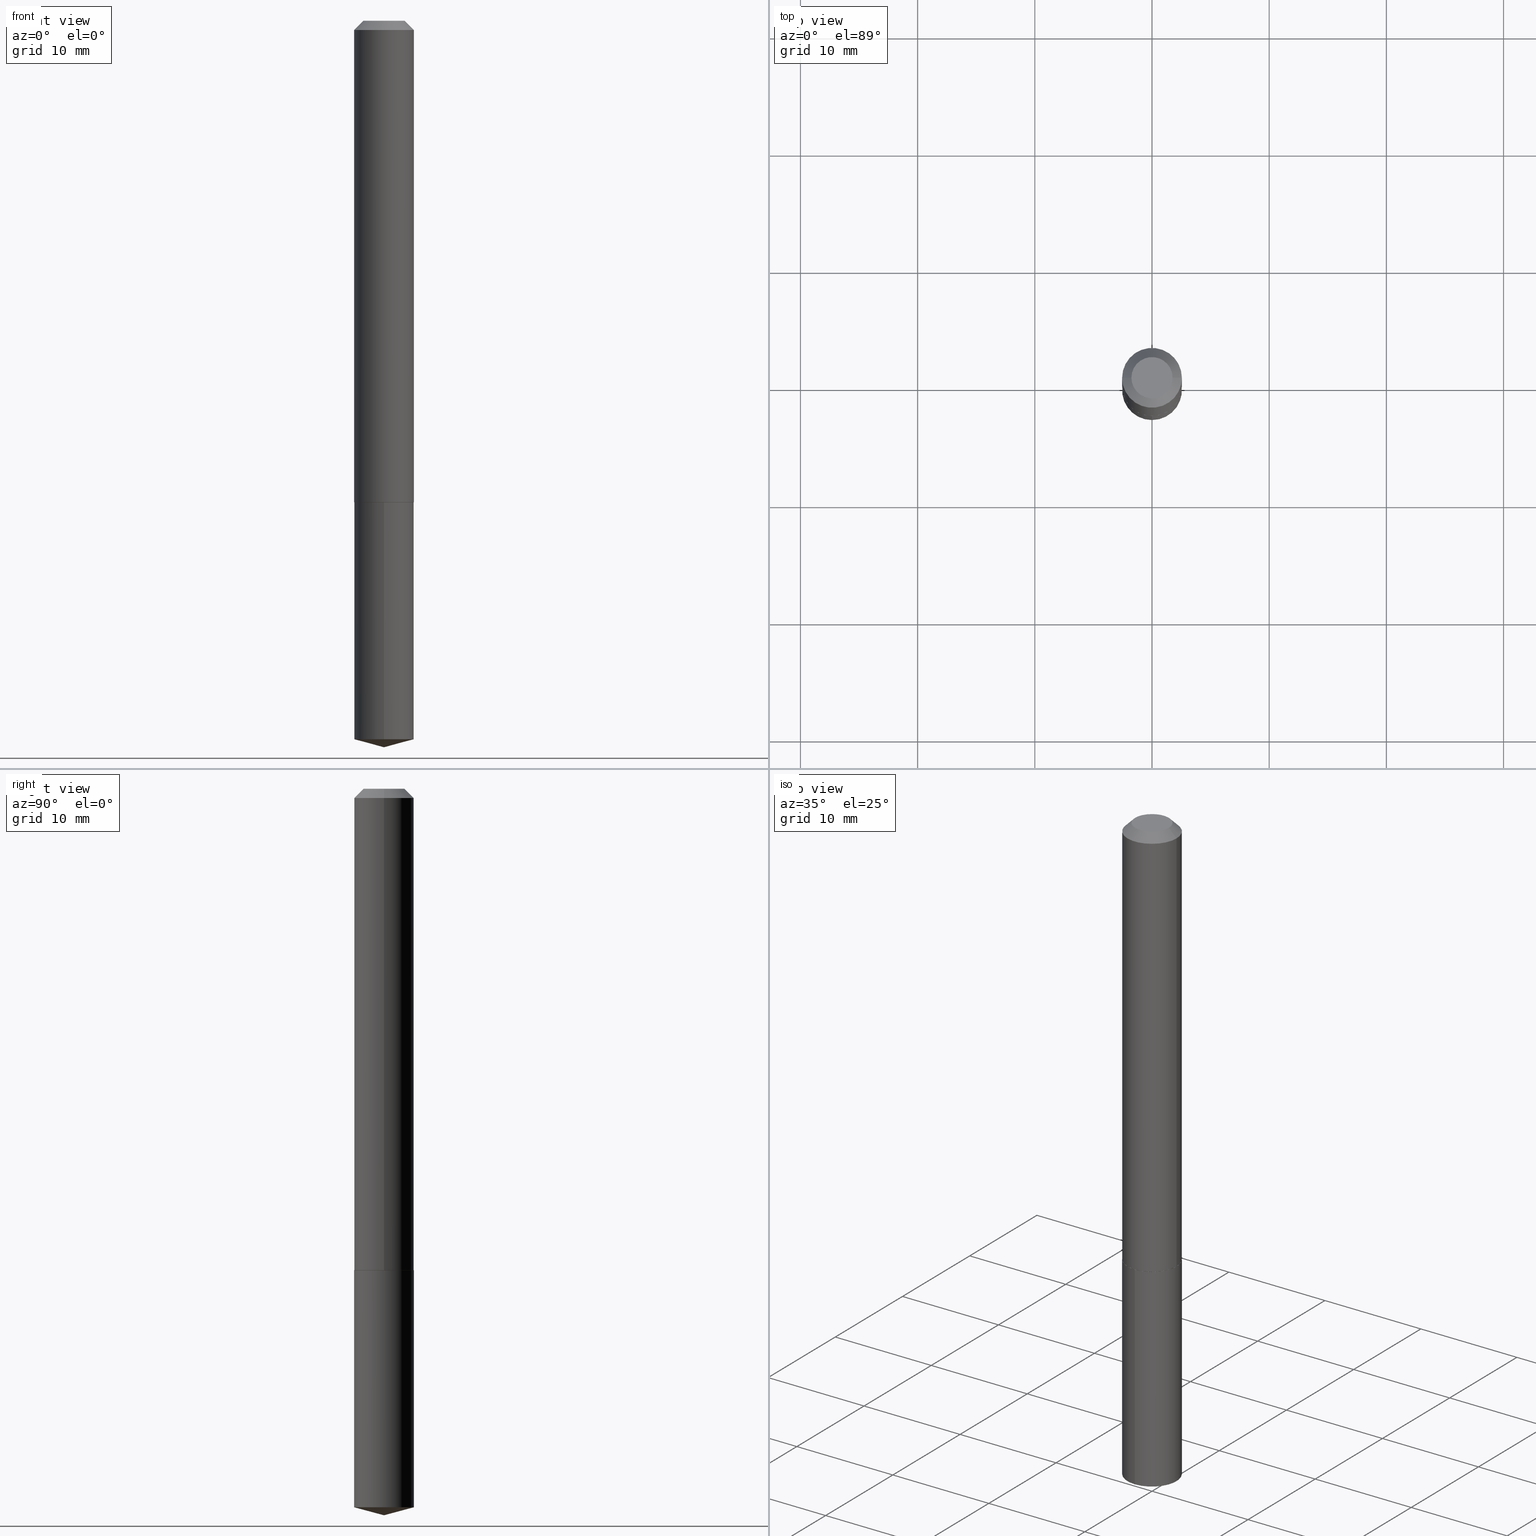
[diagram: canonical four-view strip — front | top / right | iso, engineering-drawing reading convention]
A machine part, canonical four-view strip (front | top / right | iso — engineering-drawing reading convention). The complete STEP part file that produces these views, byte-faithful:
ISO-10303-21;
HEADER;
FILE_DESCRIPTION (( 'STEP AP203' ),
    '1' );
FILE_NAME ('63057.STEP',
    '2024-04-23T08:57:42',
    ( '' ),
    ( '' ),
    'SwSTEP 2.0',
    'SolidWorks 2023',
    '' );
FILE_SCHEMA (( 'CONFIG_CONTROL_DESIGN' ));
ENDSEC;

DATA;
#1 = DIRECTION ( 'NONE',  ( -2.445468806185136597E-29, 3.491481338843145583E-15, 1.000000000000000000 ) ) ;
#2 = FACE_OUTER_BOUND ( 'NONE', #202, .T. ) ;
#3 = DIRECTION ( 'NONE',  ( 1.000000000000000000, -6.982962677686267499E-15, 4.876150890010814113E-29 ) ) ;
#4 = SHAPE_DEFINITION_REPRESENTATION ( #200, #20 ) ;
#5 = CARTESIAN_POINT ( 'NONE',  ( -1.182960040634188585E-47, 1.688953421129311321E-33, 4.837354856632064502E-19 ) ) ;
#6 = DIRECTION ( 'NONE',  ( 2.445371237226731919E-29, -3.491621063144860985E-15, -1.000000000000000000 ) ) ;
#7 = APPLICATION_CONTEXT ( 'configuration controlled 3d designs of mechanical parts and assemblies' ) ;
#8 = CARTESIAN_POINT ( 'NONE',  ( 7.133849067031996748E-16, 0.1003999999999943549, -1.618100000000000316 ) ) ;
#9 = CARTESIAN_POINT ( 'NONE',  ( 0.1004000000000000170, -7.979027908151110397E-16, -0.03125000000000020123 ) ) ;
#10 = DIRECTION ( 'NONE',  ( -2.445468806185136597E-29, 3.491481338843145583E-15, 1.000000000000000000 ) ) ;
#11 = CARTESIAN_POINT ( 'NONE',  ( 7.642090019328601786E-31, -1.091087918388490144E-16, -0.03125000000000020123 ) ) ;
#12 = AXIS2_PLACEMENT_3D ( 'NONE', #341, #243, #218 ) ;
#13 = VECTOR ( 'NONE', #252, 39.37007874015748143 ) ;
#14 = LINE ( 'NONE', #194, #286 ) ;
#15 = ADVANCED_FACE ( 'NONE', ( #230 ), #138, .T. ) ;
#16 = PERSON_AND_ORGANIZATION_ROLE ( 'classification_officer' ) ;
#17 = ORIENTED_EDGE ( 'NONE', *, *, #188, .T. ) ;
#18 = CALENDAR_DATE ( 2024, 23, 4 ) ;
#19 = ORIENTED_EDGE ( 'NONE', *, *, #245, .F. ) ;
#20 = ADVANCED_BREP_SHAPE_REPRESENTATION ( '63057', ( #167, #249, #28 ), #251 ) ;
#21 = DIRECTION ( 'NONE',  ( -2.445468806185136597E-29, 3.491481338843145583E-15, 1.000000000000000000 ) ) ;
#22 = VERTEX_POINT ( 'NONE', #203 ) ;
#23 = DATE_AND_TIME ( #76, #375 ) ;
#24 = ORIENTED_EDGE ( 'NONE', *, *, #115, .F. ) ;
#25 = DATE_TIME_ROLE ( 'creation_date' ) ;
#26 = ORIENTED_EDGE ( 'NONE', *, *, #174, .F. ) ;
#27 = AXIS2_PLACEMENT_3D ( 'NONE', #350, #282, #128 ) ;
#28 = AXIS2_PLACEMENT_3D ( 'NONE', #142, #329, #327 ) ;
#29 = CARTESIAN_POINT ( 'NONE',  ( 7.133849067031994776E-16, 0.1003999999999915516, -2.413997901079916186 ) ) ;
#30 = ADVANCED_FACE ( 'NONE', ( #274 ), #154, .T. ) ;
#31 = DIRECTION ( 'NONE',  ( -2.445468806185136597E-29, 3.491481338843145583E-15, 1.000000000000000000 ) ) ;
#32 = FACE_OUTER_BOUND ( 'NONE', #104, .T. ) ;
#33 = AXIS2_PLACEMENT_3D ( 'NONE', #147, #6, #62 ) ;
#34 = CARTESIAN_POINT ( 'NONE',  ( 3.955790340885077095E-29, -5.647820213712673171E-15, -1.617600000000000149 ) ) ;
#35 = CC_DESIGN_APPROVAL ( #84, ( #78 ) ) ;
#36 = CC_DESIGN_PERSON_AND_ORGANIZATION_ASSIGNMENT ( #110, #292, ( #291 ) ) ;
#37 = CARTESIAN_POINT ( 'NONE',  ( -0.1004000000000002113, -4.934435307009531477E-15, -1.617600000000000149 ) ) ;
#38 = DIRECTION ( 'NONE',  ( -1.000000000000000000, 6.982962677686266711E-15, 0.000000000000000000 ) ) ;
#39 = DIRECTION ( 'NONE',  ( -2.445468806185136597E-29, 3.491481338843145583E-15, 1.000000000000000000 ) ) ;
#40 = CONICAL_SURFACE ( 'NONE', #199, 146.9311341562572579, 1.308996938995750980 ) ;
#41 = DIRECTION ( 'NONE',  ( -2.445371237226732199E-29, 3.491621063144860985E-15, 1.000000000000000000 ) ) ;
#42 = LINE ( 'NONE', #349, #219 ) ;
#43 = EDGE_CURVE ( 'NONE', #320, #390, #307, .T. ) ;
#44 = FACE_OUTER_BOUND ( 'NONE', #145, .T. ) ;
#45 = CLOSED_SHELL ( 'NONE', ( #15, #242, #176, #312, #81, #378, #186, #180 ) ) ;
#46 = ADVANCED_FACE ( 'NONE', ( #308 ), #92, .F. ) ;
#47 =( NAMED_UNIT ( * ) SI_UNIT ( $, .STERADIAN. ) SOLID_ANGLE_UNIT ( ) );
#48 = VERTEX_POINT ( 'NONE', #338 ) ;
#49 = EDGE_LOOP ( 'NONE', ( #360, #137 ) ) ;
#50 =( LENGTH_UNIT ( ) NAMED_UNIT ( * ) SI_UNIT ( $, .METRE. ) );
#51 = ORIENTED_EDGE ( 'NONE', *, *, #321, .T. ) ;
#52 = APPLICATION_PROTOCOL_DEFINITION ( 'international standard', 'config_control_design', 1994, #290 ) ;
#53 = EDGE_LOOP ( 'NONE', ( #361, #334, #387, #205 ) ) ;
#54 = CARTESIAN_POINT ( 'NONE',  ( -1.182960040634188585E-47, 1.688953421129311321E-33, 4.837354856632064502E-19 ) ) ;
#55 = PERSON ( 'UNSPECIFIED', 'UNSPECIFIED', 'UNSPECIFIED', ('UNSPECIFIED'), ('UNSPECIFIED'), ('UNSPECIFIED') ) ;
#56 = ORGANIZATION ( 'UNSPECIFIED', 'UNSPECIFIED', '' ) ;
#57 = EDGE_CURVE ( 'NONE', #320, #302, #317, .T. ) ;
#58 = DIRECTION ( 'NONE',  ( -2.445371237226732199E-29, 3.491621063144860985E-15, 1.000000000000000000 ) ) ;
#59 = DIRECTION ( 'NONE',  ( -2.445468806185136877E-29, 3.491481338843145188E-15, 1.000000000000000000 ) ) ;
#60 = CARTESIAN_POINT ( 'NONE',  ( -9.030539362925444552E-28, 1.289429244216678709E-13, 36.92917874015748225 ) ) ;
#61 = AXIS2_PLACEMENT_3D ( 'NONE', #60, #85, #211 ) ;
#62 = DIRECTION ( 'NONE',  ( 6.982962677686265922E-15, 1.000000000000000000, -3.491621063144860985E-15 ) ) ;
#63 = PLANE ( 'NONE',  #131 ) ;
#64 = APPROVAL ( #306, 'UNSPECIFIED' ) ;
#65 = DIRECTION ( 'NONE',  ( 2.438088387897960049E-29, -3.491481338843145188E-15, -1.000000000000000000 ) ) ;
#66 = CARTESIAN_POINT ( 'NONE',  ( 0.06915000000000000313, -6.361531136805061115E-16, 4.837354856671185917E-19 ) ) ;
#67 = CIRCLE ( 'NONE', #236, 0.06915000000000000313 ) ;
#68 = AXIS2_PLACEMENT_3D ( 'NONE', #151, #120, #273 ) ;
#69 = ORIENTED_EDGE ( 'NONE', *, *, #343, .T. ) ;
#70 = LINE ( 'NONE', #94, #263 ) ;
#71 = LINE ( 'NONE', #9, #342 ) ;
#72 = LOCAL_TIME ( 4, 57, 42.00000000000000000, #339 ) ;
#73 = VERTEX_POINT ( 'NONE', #29 ) ;
#74 =( CONVERSION_BASED_UNIT ( 'INCH', #385 ) LENGTH_UNIT ( ) NAMED_UNIT ( #196 ) );
#75 = ORIENTED_EDGE ( 'NONE', *, *, #112, .F. ) ;
#76 = CALENDAR_DATE ( 2024, 23, 4 ) ;
#77 = EDGE_LOOP ( 'NONE', ( #358, #330, #26 ) ) ;
#78 = PRODUCT_DEFINITION_FORMATION_WITH_SPECIFIED_SOURCE ( 'ANY', '', #291, .NOT_KNOWN. ) ;
#79 = COORDINATED_UNIVERSAL_TIME_OFFSET ( 5, 0, .BEHIND. ) ;
#80 = EDGE_LOOP ( 'NONE', ( #127, #193, #208, #297 ) ) ;
#81 = ADVANCED_FACE ( 'NONE', ( #89 ), #157, .T. ) ;
#82 = CALENDAR_DATE ( 2024, 23, 4 ) ;
#83 = ORIENTED_EDGE ( 'NONE', *, *, #323, .F. ) ;
#84 = APPROVAL ( #357, 'UNSPECIFIED' ) ;
#85 = DIRECTION ( 'NONE',  ( -2.445371237226732199E-29, 3.491621063144860985E-15, 1.000000000000000000 ) ) ;
#86 = CIRCLE ( 'NONE', #91, 0.1004000000000000031 ) ;
#87 = PLANE ( 'NONE',  #172 ) ;
#88 = DATE_TIME_ROLE ( 'classification_date' ) ;
#89 = FACE_OUTER_BOUND ( 'NONE', #135, .T. ) ;
#90 = DIRECTION ( 'NONE',  ( -2.445468806185136597E-29, 3.491481338843145583E-15, 1.000000000000000000 ) ) ;
#91 = AXIS2_PLACEMENT_3D ( 'NONE', #305, #311, #364 ) ;
#92 = PLANE ( 'NONE',  #33 ) ;
#93 = CARTESIAN_POINT ( 'NONE',  ( 5.903278910358122984E-29, -8.428539829905512922E-15, -2.413997901079915742 ) ) ;
#94 = CARTESIAN_POINT ( 'NONE',  ( 7.133849067031800519E-16, 0.1003999999999943549, -1.618100000000000316 ) ) ;
#95 = EDGE_LOOP ( 'NONE', ( #51, #178, #260, #283 ) ) ;
#96 = CARTESIAN_POINT ( 'NONE',  ( 0.1004000000000002113, -6.348909666552376614E-15, -1.617600000000000149 ) ) ;
#97 = CIRCLE ( 'NONE', #27, 0.09990000000000007208 ) ;
#98 = EDGE_CURVE ( 'NONE', #347, #223, #182, .T. ) ;
#99 = CC_DESIGN_APPROVAL ( #64, ( #213 ) ) ;
#100 = DIRECTION ( 'NONE',  ( 0.7071067811865453523, -7.319954787623248157E-15, -0.7071067811865496822 ) ) ;
#101 = EDGE_CURVE ( 'NONE', #384, #380, #304, .T. ) ;
#102 = DIRECTION ( 'NONE',  ( -2.445468806185136597E-29, 3.491481338843145583E-15, 1.000000000000000000 ) ) ;
#103 = EDGE_CURVE ( 'NONE', #22, #328, #369, .T. ) ;
#104 = EDGE_LOOP ( 'NONE', ( #270, #69, #175 ) ) ;
#105 = CIRCLE ( 'NONE', #325, 0.1004000000000000170 ) ;
#106 = AXIS2_PLACEMENT_3D ( 'NONE', #322, #102, #254 ) ;
#107 = APPROVAL_DATE_TIME ( #23, #303 ) ;
#108 = ORIENTED_EDGE ( 'NONE', *, *, #197, .F. ) ;
#109 = ORIENTED_EDGE ( 'NONE', *, *, #245, .T. ) ;
#110 = PERSON_AND_ORGANIZATION ( #55, #56 ) ;
#111 = ORIENTED_EDGE ( 'NONE', *, *, #367, .F. ) ;
#112 = EDGE_CURVE ( 'NONE', #223, #347, #86, .T. ) ;
#113 = CC_DESIGN_SECURITY_CLASSIFICATION ( #213, ( #78 ) ) ;
#114 = VERTEX_POINT ( 'NONE', #37 ) ;
#115 = EDGE_CURVE ( 'NONE', #114, #209, #255, .T. ) ;
#116 = DIRECTION ( 'NONE',  ( 1.000000000000000000, -6.982962677686267499E-15, 4.876150890010814113E-29 ) ) ;
#117 = DIRECTION ( 'NONE',  ( -2.445468806185136597E-29, 3.491481338843145583E-15, 1.000000000000000000 ) ) ;
#118 = CONICAL_SURFACE ( 'NONE', #348, 0.1004000000000002113, 0.7853981633974141952 ) ;
#119 = LOCAL_TIME ( 4, 57, 42.00000000000000000, #267 ) ;
#120 = DIRECTION ( 'NONE',  ( -2.445371237226732199E-29, 3.491621063144860985E-15, 1.000000000000000000 ) ) ;
#121 = DIRECTION ( 'NONE',  ( -2.445468806185136597E-29, 3.491481338843145583E-15, 1.000000000000000000 ) ) ;
#122 = CARTESIAN_POINT ( 'NONE',  ( 3.955790340885077095E-29, -5.647820213712673171E-15, -1.617600000000000149 ) ) ;
#123 = EDGE_CURVE ( 'NONE', #209, #48, #246, .T. ) ;
#124 = CARTESIAN_POINT ( 'NONE',  ( -7.010894528396616337E-16, -0.1004000000000056514, -1.618099999999999872 ) ) ;
#125 = EDGE_CURVE ( 'NONE', #302, #320, #67, .T. ) ;
#126 = LINE ( 'NONE', #253, #336 ) ;
#127 = ORIENTED_EDGE ( 'NONE', *, *, #294, .T. ) ;
#128 = DIRECTION ( 'NONE',  ( 1.000000000000000000, -6.982962677686262766E-15, 0.000000000000000000 ) ) ;
#129 = DIRECTION ( 'NONE',  ( -6.982962677686266711E-15, -1.000000000000000000, 2.720964137115799877E-15 ) ) ;
#130 = CONICAL_SURFACE ( 'NONE', #61, 146.9311341562572579, 1.308996938995750980 ) ;
#131 = AXIS2_PLACEMENT_3D ( 'NONE', #371, #313, #192 ) ;
#132 = CYLINDRICAL_SURFACE ( 'NONE', #163, 0.1004000000000000031 ) ;
#133 = ORIENTED_EDGE ( 'NONE', *, *, #57, .F. ) ;
#134 = CALENDAR_DATE ( 2024, 23, 4 ) ;
#135 = EDGE_LOOP ( 'NONE', ( #19, #268, #316, #24 ) ) ;
#136 = SECURITY_CLASSIFICATION_LEVEL ( 'unclassified' ) ;
#137 = ORIENTED_EDGE ( 'NONE', *, *, #103, .F. ) ;
#138 = CONICAL_SURFACE ( 'NONE', #353, 0.1004000000000000170, 0.7853981633974452814 ) ;
#139 = PERSON_AND_ORGANIZATION_ROLE ( 'design_supplier' ) ;
#140 = EDGE_LOOP ( 'NONE', ( #332, #299 ) ) ;
#141 = ADVANCED_FACE ( 'NONE', ( #239 ), #130, .T. ) ;
#142 = CARTESIAN_POINT ( 'NONE',  ( 0.000000000000000000, 0.000000000000000000, 0.000000000000000000 ) ) ;
#143 = ORIENTED_EDGE ( 'NONE', *, *, #174, .T. ) ;
#144 = APPROVAL_ROLE ( '' ) ;
#145 = EDGE_LOOP ( 'NONE', ( #111, #143, #235, #75 ) ) ;
#146 = AXIS2_PLACEMENT_3D ( 'NONE', #314, #39, #158 ) ;
#147 = CARTESIAN_POINT ( 'NONE',  ( 3.957013075288169897E-29, -5.649565954382093886E-15, -1.618100000000000094 ) ) ;
#148 = DESIGN_CONTEXT ( 'detailed design', #290, 'design' ) ;
#149 = DIRECTION ( 'NONE',  ( 1.000000000000000000, -6.982962677686266711E-15, 0.000000000000000000 ) ) ;
#150 = PRODUCT_RELATED_PRODUCT_CATEGORY ( 'detail', '', ( #291 ) ) ;
#151 = CARTESIAN_POINT ( 'NONE',  ( 5.903278910358122984E-29, -8.428539829905512922E-15, -2.413997901079915742 ) ) ;
#152 = CARTESIAN_POINT ( 'NONE',  ( 3.957013075288169897E-29, -5.649565954382093886E-15, -1.618100000000000094 ) ) ;
#153 = ADVANCED_FACE ( 'NONE', ( #32 ), #40, .T. ) ;
#154 = CYLINDRICAL_SURFACE ( 'NONE', #12, 0.1004000000000000031 ) ;
#155 = CARTESIAN_POINT ( 'NONE',  ( -0.06915000000000000313, 5.374262650814288063E-16, 4.837354856596389538E-19 ) ) ;
#156 = CC_DESIGN_DATE_AND_TIME_ASSIGNMENT ( #232, #25, ( #370 ) ) ;
#157 = CONICAL_SURFACE ( 'NONE', #191, 0.1004000000000002113, 0.7853981633974141952 ) ;
#158 = DIRECTION ( 'NONE',  ( 1.000000000000000000, -6.982962677686266711E-15, 0.000000000000000000 ) ) ;
#159 = APPROVAL_PERSON_ORGANIZATION ( #352, #84, #144 ) ;
#160 = LINE ( 'NONE', #124, #13 ) ;
#161 = CARTESIAN_POINT ( 'NONE',  ( 0.1004000000000002113, -6.348909666552376614E-15, -1.617600000000000149 ) ) ;
#162 = CARTESIAN_POINT ( 'NONE',  ( 3.957013075288169897E-29, -5.649565954382093886E-15, -1.618100000000000094 ) ) ;
#163 = AXIS2_PLACEMENT_3D ( 'NONE', #162, #41, #129 ) ;
#164 = PERSON_AND_ORGANIZATION ( #55, #56 ) ;
#165 = EDGE_CURVE ( 'NONE', #48, #390, #105, .T. ) ;
#166 = ORIENTED_EDGE ( 'NONE', *, *, #115, .T. ) ;
#167 = MANIFOLD_SOLID_BREP ( 'Body-Move/Copy2[1]', #359 ) ;
#168 = DIRECTION ( 'NONE',  ( 2.445468806185136597E-29, -3.491481338843145583E-15, -1.000000000000000000 ) ) ;
#169 = CC_DESIGN_DATE_AND_TIME_ASSIGNMENT ( #365, #88, ( #213 ) ) ;
#170 = APPROVAL_DATE_TIME ( #388, #84 ) ;
#171 = ORIENTED_EDGE ( 'NONE', *, *, #294, .F. ) ;
#172 = AXIS2_PLACEMENT_3D ( 'NONE', #324, #65, #226 ) ;
#173 = APPROVAL_PERSON_ORGANIZATION ( #265, #303, #234 ) ;
#174 = EDGE_CURVE ( 'NONE', #73, #380, #262, .T. ) ;
#175 = ORIENTED_EDGE ( 'NONE', *, *, #321, .F. ) ;
#176 = ADVANCED_FACE ( 'NONE', ( #2 ), #118, .T. ) ;
#177 = PERSON_AND_ORGANIZATION_ROLE ( 'creator' ) ;
#178 = ORIENTED_EDGE ( 'NONE', *, *, #367, .T. ) ;
#179 = PERSON_AND_ORGANIZATION ( #55, #56 ) ;
#180 = ADVANCED_FACE ( 'NONE', ( #363 ), #87, .F. ) ;
#181 = DIRECTION ( 'NONE',  ( -2.445468806185136597E-29, 3.491481338843145583E-15, 1.000000000000000000 ) ) ;
#182 = CIRCLE ( 'NONE', #271, 0.1004000000000000031 ) ;
#183 = DIRECTION ( 'NONE',  ( -2.445371237226732199E-29, 3.491621063144860985E-15, 1.000000000000000000 ) ) ;
#184 = CARTESIAN_POINT ( 'NONE',  ( 7.642090019328601786E-31, -1.091087918388490144E-16, -0.03125000000000020123 ) ) ;
#185 = CARTESIAN_POINT ( 'NONE',  ( 3.955790340885077095E-29, -5.647820213712673171E-15, -1.617600000000000149 ) ) ;
#186 = ADVANCED_FACE ( 'NONE', ( #190 ), #309, .T. ) ;
#187 = CARTESIAN_POINT ( 'NONE',  ( 5.968906652946730825E-29, -8.522697853030292235E-15, -2.440900000000000070 ) ) ;
#188 = EDGE_CURVE ( 'NONE', #328, #22, #97, .T. ) ;
#189 = DIRECTION ( 'NONE',  ( 1.000000000000000000, -6.982962677686267499E-15, 0.000000000000000000 ) ) ;
#190 = FACE_OUTER_BOUND ( 'NONE', #386, .T. ) ;
#191 = AXIS2_PLACEMENT_3D ( 'NONE', #34, #362, #244 ) ;
#192 = DIRECTION ( 'NONE',  ( 1.000000000000000000, -6.982962677686265922E-15, 4.876176775795935793E-29 ) ) ;
#193 = ORIENTED_EDGE ( 'NONE', *, *, #197, .T. ) ;
#194 = CARTESIAN_POINT ( 'NONE',  ( -0.1004000000000001142, 7.133849067031413977E-16, -4.938610830615930599E-30 ) ) ;
#195 = DIRECTION ( 'NONE',  ( -0.7071067811865232589, 7.493145998870265808E-15, 0.7071067811865715536 ) ) ;
#196 = DIMENSIONAL_EXPONENTS ( 1.000000000000000000, 0.000000000000000000, 0.000000000000000000, 0.000000000000000000, 0.000000000000000000, 0.000000000000000000, 0.000000000000000000 ) ;
#197 = EDGE_CURVE ( 'NONE', #114, #390, #14, .T. ) ;
#198 = PERSON_AND_ORGANIZATION ( #55, #56 ) ;
#199 = AXIS2_PLACEMENT_3D ( 'NONE', #335, #58, #214 ) ;
#200 = PRODUCT_DEFINITION_SHAPE ( 'NONE', 'NONE',  #370 ) ;
#201 = CARTESIAN_POINT ( 'NONE',  ( -0.1004000000000000170, -2.165079596072618653E-15, -0.03125000000000020123 ) ) ;
#202 = EDGE_LOOP ( 'NONE', ( #17, #109, #171, #264 ) ) ;
#203 = CARTESIAN_POINT ( 'NONE',  ( -0.09990000000000007208, -4.937084534183643467E-15, -1.618100000000000316 ) ) ;
#204 = CALENDAR_DATE ( 2024, 23, 4 ) ;
#205 = ORIENTED_EDGE ( 'NONE', *, *, #43, .F. ) ;
#206 = CIRCLE ( 'NONE', #281, 0.1004000000000002113 ) ;
#207 = CARTESIAN_POINT ( 'NONE',  ( 5.968906652946730825E-29, -8.522697853030292235E-15, -2.440900000000000070 ) ) ;
#208 = ORIENTED_EDGE ( 'NONE', *, *, #165, .F. ) ;
#209 = VERTEX_POINT ( 'NONE', #96 ) ;
#210 = ADVANCED_FACE ( 'NONE', ( #44 ), #132, .T. ) ;
#211 = DIRECTION ( 'NONE',  ( -6.982962677686267499E-15, -1.000000000000000000, 3.510303681827586791E-15 ) ) ;
#212 = AXIS2_PLACEMENT_3D ( 'NONE', #277, #121, #340 ) ;
#213 = SECURITY_CLASSIFICATION ( '', '', #136 ) ;
#214 = DIRECTION ( 'NONE',  ( -6.982962677686267499E-15, -1.000000000000000000, 3.510303681827586791E-15 ) ) ;
#215 = APPROVAL_ROLE ( '' ) ;
#216 = DIRECTION ( 'NONE',  ( -6.982962677686266711E-15, -1.000000000000000000, 2.720964137115799877E-15 ) ) ;
#217 = EDGE_CURVE ( 'NONE', #302, #48, #71, .T. ) ;
#218 = DIRECTION ( 'NONE',  ( -6.982962677686266711E-15, -1.000000000000000000, 2.720964137115799877E-15 ) ) ;
#219 = VECTOR ( 'NONE', #195, 39.37007874015748854 ) ;
#220 = CARTESIAN_POINT ( 'NONE',  ( -0.1004000000000000170, 5.919806610008522719E-16, -0.03125000000000020123 ) ) ;
#221 = DIRECTION ( 'NONE',  ( -2.445371237226732199E-29, 3.491621063144860985E-15, 1.000000000000000000 ) ) ;
#222 = DIRECTION ( 'NONE',  ( -2.445371237226731919E-29, 3.491621063144860985E-15, 1.000000000000000000 ) ) ;
#223 = VERTEX_POINT ( 'NONE', #8 ) ;
#224 = AXIS2_PLACEMENT_3D ( 'NONE', #284, #21, #383 ) ;
#225 = CARTESIAN_POINT ( 'NONE',  ( 0.09990000000000007208, -6.347163925882952744E-15, -1.618100000000000316 ) ) ;
#226 = DIRECTION ( 'NONE',  ( -1.000000000000000000, 6.982962677686265922E-15, -4.876176775795935793E-29 ) ) ;
#227 = PERSON_AND_ORGANIZATION_ROLE ( 'creator' ) ;
#228 = CC_DESIGN_PERSON_AND_ORGANIZATION_ASSIGNMENT ( #301, #177, ( #370 ) ) ;
#229 = VECTOR ( 'NONE', #278, 39.37007874015748143 ) ;
#230 = FACE_OUTER_BOUND ( 'NONE', #53, .T. ) ;
#231 = ORIENTED_EDGE ( 'NONE', *, *, #123, .T. ) ;
#232 = DATE_AND_TIME ( #18, #119 ) ;
#233 = ORIENTED_EDGE ( 'NONE', *, *, #323, .T. ) ;
#234 = APPROVAL_ROLE ( '' ) ;
#235 = ORIENTED_EDGE ( 'NONE', *, *, #300, .T. ) ;
#236 = AXIS2_PLACEMENT_3D ( 'NONE', #54, #181, #116 ) ;
#237 = APPROVAL_PERSON_ORGANIZATION ( #179, #64, #215 ) ;
#238 = EDGE_LOOP ( 'NONE', ( #289, #333 ) ) ;
#239 = FACE_OUTER_BOUND ( 'NONE', #77, .T. ) ;
#240 = CC_DESIGN_PERSON_AND_ORGANIZATION_ASSIGNMENT ( #164, #16, ( #213 ) ) ;
#241 = DIRECTION ( 'NONE',  ( 1.000000000000000000, -6.982962677686267499E-15, 0.000000000000000000 ) ) ;
#242 = ADVANCED_FACE ( 'NONE', ( #257 ), #376, .T. ) ;
#243 = DIRECTION ( 'NONE',  ( -2.445371237226732199E-29, 3.491621063144860985E-15, 1.000000000000000000 ) ) ;
#244 = DIRECTION ( 'NONE',  ( 1.000000000000000000, -6.982962677686267499E-15, 0.000000000000000000 ) ) ;
#245 = EDGE_CURVE ( 'NONE', #22, #114, #42, .T. ) ;
#246 = LINE ( 'NONE', #368, #295 ) ;
#247 = UNCERTAINTY_MEASURE_WITH_UNIT (LENGTH_MEASURE( 1.000000000000000082E-05 ), #74, 'distance_accuracy_value', 'NONE');
#248 = EDGE_CURVE ( 'NONE', #328, #209, #285, .T. ) ;
#249 = MANIFOLD_SOLID_BREP ( 'Body-Move/Copy2[2]', #45 ) ;
#250 = AXIS2_PLACEMENT_3D ( 'NONE', #122, #1, #272 ) ;
#251 =( GEOMETRIC_REPRESENTATION_CONTEXT ( 3 ) GLOBAL_UNCERTAINTY_ASSIGNED_CONTEXT ( ( #247 ) ) GLOBAL_UNIT_ASSIGNED_CONTEXT ( ( #74, #259, #47 ) ) REPRESENTATION_CONTEXT ( 'NONE', 'WORKASPACE' ) );
#252 = DIRECTION ( 'NONE',  ( -2.445371237226731919E-29, 3.491621063144860985E-15, 1.000000000000000000 ) ) ;
#253 = CARTESIAN_POINT ( 'NONE',  ( 5.969225174388058850E-29, -8.522245677245080758E-15, -2.440900000000000070 ) ) ;
#254 = DIRECTION ( 'NONE',  ( 1.000000000000000000, -6.982962677686266711E-15, 4.876176775795935232E-29 ) ) ;
#255 = CIRCLE ( 'NONE', #250, 0.1004000000000002113 ) ;
#256 = CIRCLE ( 'NONE', #146, 0.1004000000000000170 ) ;
#257 = FACE_OUTER_BOUND ( 'NONE', #80, .T. ) ;
#258 = CARTESIAN_POINT ( 'NONE',  ( 3.955790340885077095E-29, -5.647820213712673171E-15, -1.617600000000000149 ) ) ;
#259 =( NAMED_UNIT ( * ) PLANE_ANGLE_UNIT ( ) SI_UNIT ( $, .RADIAN. ) );
#260 = ORIENTED_EDGE ( 'NONE', *, *, #98, .F. ) ;
#261 = COORDINATED_UNIVERSAL_TIME_OFFSET ( 5, 0, .BEHIND. ) ;
#262 = CIRCLE ( 'NONE', #68, 0.1004000000000000031 ) ;
#263 = VECTOR ( 'NONE', #222, 39.37007874015748143 ) ;
#264 = ORIENTED_EDGE ( 'NONE', *, *, #248, .F. ) ;
#265 = PERSON_AND_ORGANIZATION ( #55, #56 ) ;
#266 = EDGE_LOOP ( 'NONE', ( #108, #166, #231, #83 ) ) ;
#267 = COORDINATED_UNIVERSAL_TIME_OFFSET ( 5, 0, .BEHIND. ) ;
#268 = ORIENTED_EDGE ( 'NONE', *, *, #103, .T. ) ;
#269 = APPLICATION_PROTOCOL_DEFINITION ( 'international standard', 'config_control_design', 1994, #7 ) ;
#270 = ORIENTED_EDGE ( 'NONE', *, *, #101, .F. ) ;
#271 = AXIS2_PLACEMENT_3D ( 'NONE', #152, #183, #216 ) ;
#272 = DIRECTION ( 'NONE',  ( 1.000000000000000000, -6.982962677686267499E-15, 0.000000000000000000 ) ) ;
#273 = DIRECTION ( 'NONE',  ( -6.982962677686266711E-15, -1.000000000000000000, 2.720964137115799877E-15 ) ) ;
#274 = FACE_OUTER_BOUND ( 'NONE', #95, .T. ) ;
#275 = AXIS2_PLACEMENT_3D ( 'NONE', #11, #279, #38 ) ;
#276 = CC_DESIGN_APPROVAL ( #303, ( #370 ) ) ;
#277 = CARTESIAN_POINT ( 'NONE',  ( 3.957013075288171018E-29, -5.649565954382094675E-15, -1.618100000000000316 ) ) ;
#278 = DIRECTION ( 'NONE',  ( -0.7071067811865453523, 2.468850131082234184E-15, -0.7071067811865496822 ) ) ;
#279 = DIRECTION ( 'NONE',  ( 2.445468806185136597E-29, -3.491481338843145583E-15, -1.000000000000000000 ) ) ;
#280 = VECTOR ( 'NONE', #366, 39.37007874015748143 ) ;
#281 = AXIS2_PLACEMENT_3D ( 'NONE', #258, #10, #189 ) ;
#282 = DIRECTION ( 'NONE',  ( -2.445468806185136597E-29, 3.491481338843145583E-15, 1.000000000000000000 ) ) ;
#283 = ORIENTED_EDGE ( 'NONE', *, *, #300, .F. ) ;
#284 = CARTESIAN_POINT ( 'NONE',  ( 0.000000000000000000, 0.000000000000000000, 0.000000000000000000 ) ) ;
#285 = LINE ( 'NONE', #161, #326 ) ;
#286 = VECTOR ( 'NONE', #344, 39.37007874015748143 ) ;
#287 = DIRECTION ( 'NONE',  ( 0.7071067811865232589, -2.468850131082003836E-15, 0.7071067811865715536 ) ) ;
#288 = MECHANICAL_CONTEXT ( 'NONE', #7, 'mechanical' ) ;
#289 = ORIENTED_EDGE ( 'NONE', *, *, #57, .T. ) ;
#290 = APPLICATION_CONTEXT ( 'configuration controlled 3d designs of mechanical parts and assemblies' ) ;
#291 = PRODUCT ( '63057', '63057', '', ( #288 ) ) ;
#292 = PERSON_AND_ORGANIZATION_ROLE ( 'design_owner' ) ;
#293 = ORIENTED_EDGE ( 'NONE', *, *, #217, .F. ) ;
#294 = EDGE_CURVE ( 'NONE', #209, #114, #206, .T. ) ;
#295 = VECTOR ( 'NONE', #59, 39.37007874015748143 ) ;
#296 = AXIS2_PLACEMENT_3D ( 'NONE', #93, #221, #345 ) ;
#297 = ORIENTED_EDGE ( 'NONE', *, *, #123, .F. ) ;
#298 = APPROVAL_STATUS ( 'not_yet_approved' ) ;
#299 = ORIENTED_EDGE ( 'NONE', *, *, #112, .T. ) ;
#300 = EDGE_CURVE ( 'NONE', #380, #347, #160, .T. ) ;
#301 = PERSON_AND_ORGANIZATION ( #55, #56 ) ;
#302 = VERTEX_POINT ( 'NONE', #66 ) ;
#303 = APPROVAL ( #298, 'UNSPECIFIED' ) ;
#304 = LINE ( 'NONE', #187, #280 ) ;
#305 = CARTESIAN_POINT ( 'NONE',  ( 3.957013075288169897E-29, -5.649565954382093886E-15, -1.618100000000000094 ) ) ;
#306 = APPROVAL_STATUS ( 'not_yet_approved' ) ;
#307 = LINE ( 'NONE', #220, #229 ) ;
#308 = FACE_OUTER_BOUND ( 'NONE', #140, .T. ) ;
#309 = CONICAL_SURFACE ( 'NONE', #275, 0.1004000000000000170, 0.7853981633974452814 ) ;
#310 = DATE_AND_TIME ( #82, #72 ) ;
#311 = DIRECTION ( 'NONE',  ( -2.445371237226732199E-29, 3.491621063144860985E-15, 1.000000000000000000 ) ) ;
#312 = ADVANCED_FACE ( 'NONE', ( #377 ), #63, .F. ) ;
#313 = DIRECTION ( 'NONE',  ( -2.438088387897960049E-29, 3.491481338843145188E-15, 1.000000000000000000 ) ) ;
#314 = CARTESIAN_POINT ( 'NONE',  ( 7.642090019328601786E-31, -1.091087918388490144E-16, -0.03125000000000020123 ) ) ;
#315 = CC_DESIGN_PERSON_AND_ORGANIZATION_ASSIGNMENT ( #198, #139, ( #78 ) ) ;
#316 = ORIENTED_EDGE ( 'NONE', *, *, #248, .T. ) ;
#317 = CIRCLE ( 'NONE', #374, 0.06915000000000000313 ) ;
#318 = LOCAL_TIME ( 4, 57, 42.00000000000000000, #355 ) ;
#319 = CYLINDRICAL_SURFACE ( 'NONE', #224, 0.1004000000000001142 ) ;
#320 = VERTEX_POINT ( 'NONE', #155 ) ;
#321 = EDGE_CURVE ( 'NONE', #380, #73, #382, .T. ) ;
#322 = CARTESIAN_POINT ( 'NONE',  ( 0.000000000000000000, 0.000000000000000000, 0.000000000000000000 ) ) ;
#323 = EDGE_CURVE ( 'NONE', #390, #48, #256, .T. ) ;
#324 = CARTESIAN_POINT ( 'NONE',  ( -5.914800203170942927E-48, 8.444767105646556605E-34, 2.418677428316032251E-19 ) ) ;
#325 = AXIS2_PLACEMENT_3D ( 'NONE', #184, #31, #149 ) ;
#326 = VECTOR ( 'NONE', #287, 39.37007874015748854 ) ;
#327 = DIRECTION ( 'NONE',  ( 1.000000000000000000, 0.000000000000000000, 0.000000000000000000 ) ) ;
#328 = VERTEX_POINT ( 'NONE', #225 ) ;
#329 = DIRECTION ( 'NONE',  ( 0.000000000000000000, 0.000000000000000000, 1.000000000000000000 ) ) ;
#330 = ORIENTED_EDGE ( 'NONE', *, *, #101, .T. ) ;
#331 = PERSON_AND_ORGANIZATION ( #55, #56 ) ;
#332 = ORIENTED_EDGE ( 'NONE', *, *, #98, .T. ) ;
#333 = ORIENTED_EDGE ( 'NONE', *, *, #125, .T. ) ;
#334 = ORIENTED_EDGE ( 'NONE', *, *, #217, .T. ) ;
#335 = CARTESIAN_POINT ( 'NONE',  ( -9.030539362925444552E-28, 1.289429244216678709E-13, 36.92917874015748225 ) ) ;
#336 = VECTOR ( 'NONE', #373, 39.37007874015748143 ) ;
#337 = APPROVAL_DATE_TIME ( #310, #64 ) ;
#338 = CARTESIAN_POINT ( 'NONE',  ( 0.1004000000000000170, -8.101982446785503746E-16, -0.03125000000000020123 ) ) ;
#339 = COORDINATED_UNIVERSAL_TIME_OFFSET ( 5, 0, .BEHIND. ) ;
#340 = DIRECTION ( 'NONE',  ( 1.000000000000000000, -6.982962677686262766E-15, 0.000000000000000000 ) ) ;
#341 = CARTESIAN_POINT ( 'NONE',  ( 3.957013075288169897E-29, -5.649565954382093886E-15, -1.618100000000000094 ) ) ;
#342 = VECTOR ( 'NONE', #100, 39.37007874015748143 ) ;
#343 = EDGE_CURVE ( 'NONE', #384, #73, #126, .T. ) ;
#344 = DIRECTION ( 'NONE',  ( -2.445468806185136877E-29, 3.491481338843145188E-15, 1.000000000000000000 ) ) ;
#345 = DIRECTION ( 'NONE',  ( -6.982962677686266711E-15, -1.000000000000000000, 2.720964137115799877E-15 ) ) ;
#346 = FACE_OUTER_BOUND ( 'NONE', #266, .T. ) ;
#347 = VERTEX_POINT ( 'NONE', #372 ) ;
#348 = AXIS2_PLACEMENT_3D ( 'NONE', #185, #117, #241 ) ;
#349 = CARTESIAN_POINT ( 'NONE',  ( -0.1004000000000002113, -4.934435307009531477E-15, -1.617600000000000149 ) ) ;
#350 = CARTESIAN_POINT ( 'NONE',  ( 3.957013075288171018E-29, -5.649565954382094675E-15, -1.618100000000000316 ) ) ;
#351 = ORIENTED_EDGE ( 'NONE', *, *, #43, .T. ) ;
#352 = PERSON_AND_ORGANIZATION ( #55, #56 ) ;
#353 = AXIS2_PLACEMENT_3D ( 'NONE', #354, #168, #356 ) ;
#354 = CARTESIAN_POINT ( 'NONE',  ( 7.642090019328601786E-31, -1.091087918388490144E-16, -0.03125000000000020123 ) ) ;
#355 = COORDINATED_UNIVERSAL_TIME_OFFSET ( 5, 0, .BEHIND. ) ;
#356 = DIRECTION ( 'NONE',  ( -1.000000000000000000, 6.982962677686266711E-15, 0.000000000000000000 ) ) ;
#357 = APPROVAL_STATUS ( 'not_yet_approved' ) ;
#358 = ORIENTED_EDGE ( 'NONE', *, *, #343, .F. ) ;
#359 = CLOSED_SHELL ( 'NONE', ( #30, #153, #141, #210, #46 ) ) ;
#360 = ORIENTED_EDGE ( 'NONE', *, *, #188, .F. ) ;
#361 = ORIENTED_EDGE ( 'NONE', *, *, #125, .F. ) ;
#362 = DIRECTION ( 'NONE',  ( -2.445468806185136597E-29, 3.491481338843145583E-15, 1.000000000000000000 ) ) ;
#363 = FACE_OUTER_BOUND ( 'NONE', #238, .T. ) ;
#364 = DIRECTION ( 'NONE',  ( -6.982962677686266711E-15, -1.000000000000000000, 2.720964137115799877E-15 ) ) ;
#365 = DATE_AND_TIME ( #134, #389 ) ;
#366 = DIRECTION ( 'NONE',  ( -6.745023994389845444E-15, -0.9659258262890684232, 0.2588190451025204619 ) ) ;
#367 = EDGE_CURVE ( 'NONE', #73, #223, #70, .T. ) ;
#368 = CARTESIAN_POINT ( 'NONE',  ( 0.1004000000000001142, -7.010894528397019642E-16, 4.895681482899124760E-30 ) ) ;
#369 = CIRCLE ( 'NONE', #212, 0.09990000000000007208 ) ;
#370 = PRODUCT_DEFINITION ( 'UNKNOWN', '', #78, #148 ) ;
#371 = CARTESIAN_POINT ( 'NONE',  ( 8.671721508532232060E-30, -1.007439402099684494E-14, -1.618100000000000316 ) ) ;
#372 = CARTESIAN_POINT ( 'NONE',  ( -7.010894528396616337E-16, -0.1004000000000056514, -1.618099999999999872 ) ) ;
#373 = DIRECTION ( 'NONE',  ( 6.863315791527699781E-15, 0.9659258262890701996, 0.2588190451025136896 ) ) ;
#374 = AXIS2_PLACEMENT_3D ( 'NONE', #5, #90, #3 ) ;
#375 = LOCAL_TIME ( 4, 57, 42.00000000000000000, #79 ) ;
#376 = CYLINDRICAL_SURFACE ( 'NONE', #106, 0.1004000000000001142 ) ;
#377 = FACE_OUTER_BOUND ( 'NONE', #49, .T. ) ;
#378 = ADVANCED_FACE ( 'NONE', ( #346 ), #319, .T. ) ;
#379 = CARTESIAN_POINT ( 'NONE',  ( -7.010894528396420108E-16, -0.1004000000000084269, -2.413997901079915742 ) ) ;
#380 = VERTEX_POINT ( 'NONE', #379 ) ;
#381 = CC_DESIGN_PERSON_AND_ORGANIZATION_ASSIGNMENT ( #331, #227, ( #78 ) ) ;
#382 = CIRCLE ( 'NONE', #296, 0.1004000000000000031 ) ;
#383 = DIRECTION ( 'NONE',  ( 1.000000000000000000, -6.982962677686266711E-15, 4.876176775795935232E-29 ) ) ;
#384 = VERTEX_POINT ( 'NONE', #207 ) ;
#385 = LENGTH_MEASURE_WITH_UNIT ( LENGTH_MEASURE( 0.02539999999999999897 ), #50 );
#386 = EDGE_LOOP ( 'NONE', ( #293, #133, #351, #233 ) ) ;
#387 = ORIENTED_EDGE ( 'NONE', *, *, #165, .T. ) ;
#388 = DATE_AND_TIME ( #204, #318 ) ;
#389 = LOCAL_TIME ( 4, 57, 42.00000000000000000, #261 ) ;
#390 = VERTEX_POINT ( 'NONE', #201 ) ;
ENDSEC;
END-ISO-10303-21;
